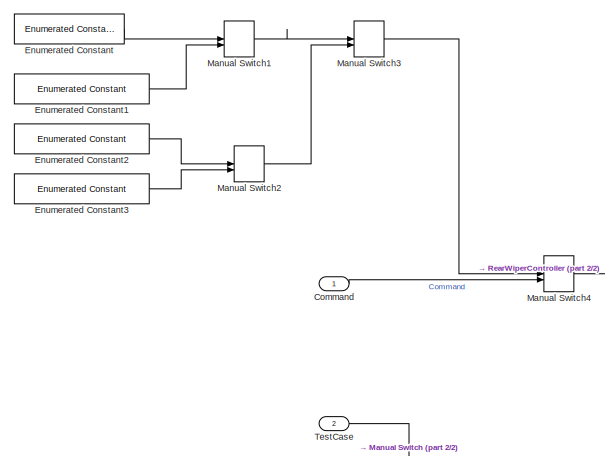
[diagram: root canvas - part 1/2, middle left region]
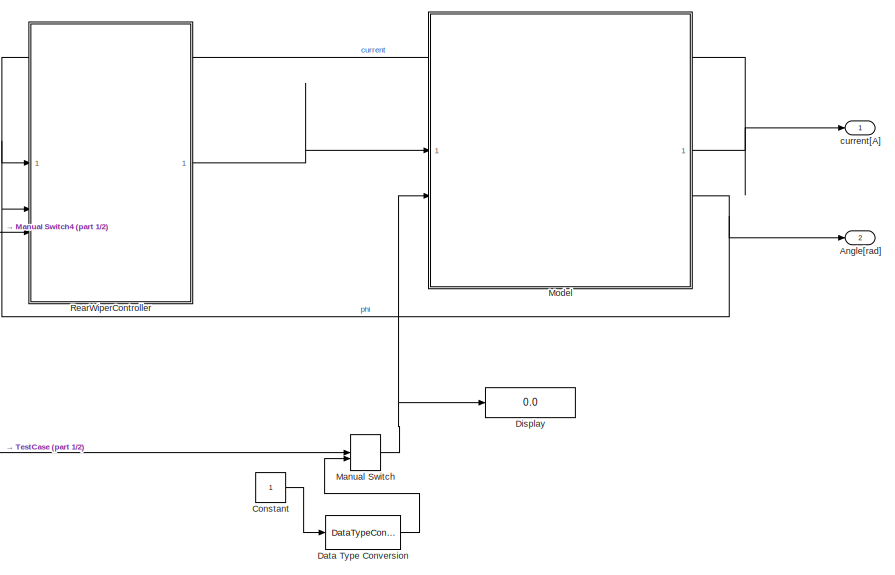
[diagram: root canvas - part 2/2, right side, full height]
MODEL slx_7d35866e43de
KIND model
CONFIG AbsTol = auto
CONFIG EnableMultiTasking = off
CONFIG FixedStep = 5e-5
CONFIG MaxStep = auto
CONFIG MinStep = auto
CONFIG PreLoadFcn = Simulink.defineIntEnumType('windowCommand', {'Off','Speed1','Speed2','Speed3'},[0,1,2,3])
CONFIG RelTol = 1e-3
CONFIG SampleTimeConstraint = Unconstrained
CONFIG SolverName = FixedStepDiscrete
CONFIG StartTime = 0.0
CONFIG StopTime = 15
BLOCK [Outport] Angle[rad]
  Port = 2
BLOCK [Inport] Command
  OutDataTypeStr = Enum: windowCommand
BLOCK [Constant] Constant
BLOCK [DataTypeConversion] Data Type Conversion
  OutDataTypeStr = int8
  RndMeth = Floor
  SaturateOnIntegerOverflow = off
BLOCK [Display] Display
  Decimation = 1
BLOCK [Reference] Enumerated Constant  REF=simulink/Sources/Enumerated
Constant
  SourceBlock = simulink/Sources/Enumerated\nConstant
  SourceType = Enumerated Constant
BLOCK [Reference] Enumerated Constant1  REF=simulink/Sources/Enumerated
Constant
  SourceBlock = simulink/Sources/Enumerated\nConstant
  SourceType = Enumerated Constant
BLOCK [Reference] Enumerated Constant2  REF=simulink/Sources/Enumerated
Constant
  SourceBlock = simulink/Sources/Enumerated\nConstant
  SourceType = Enumerated Constant
BLOCK [Reference] Enumerated Constant3  REF=simulink/Sources/Enumerated
Constant
  SourceBlock = simulink/Sources/Enumerated\nConstant
  SourceType = Enumerated Constant
BLOCK [ManualSwitch] Manual Switch
  CurrentSetting = 0
BLOCK [ManualSwitch] Manual Switch1
BLOCK [ManualSwitch] Manual Switch2
  CurrentSetting = 0
BLOCK [ManualSwitch] Manual Switch3
  CurrentSetting = 0
BLOCK [ManualSwitch] Manual Switch4
BLOCK [ModelReference] Model
  CopyOfModelProtected = on
  ModelNameDialog = RearWiperMotor.slxp
  ModelReferenceVersion = 19.15
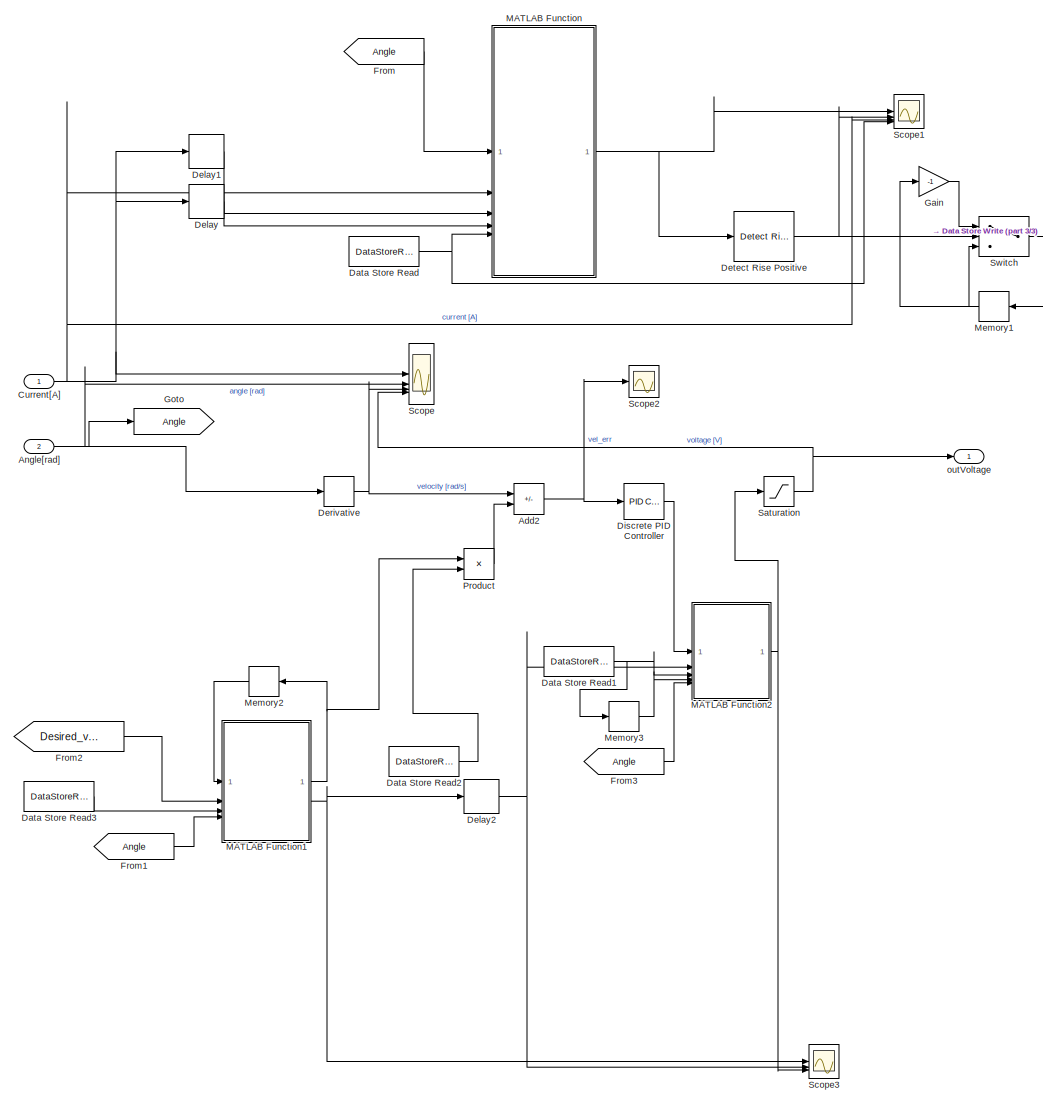
[diagram: RearWiperController - part 1/3, center side, full height]
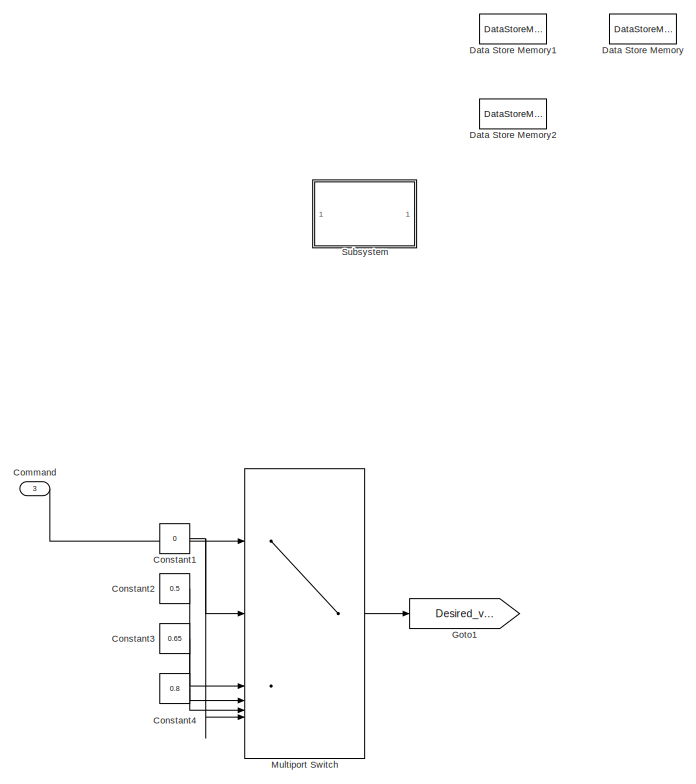
[diagram: RearWiperController - part 2/3, middle left region]
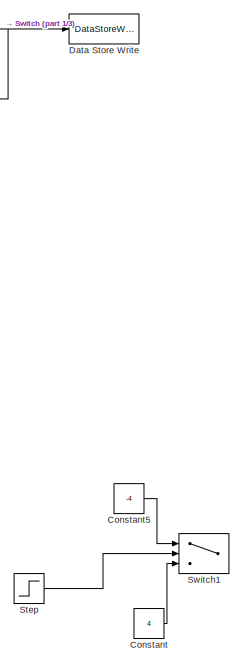
[diagram: RearWiperController - part 3/3, middle right region]
BLOCK [SubSystem] RearWiperController
BLOCK [Sum] RearWiperController/Add2
  IconShape = rectangular
  Inputs = -+
BLOCK [Inport] RearWiperController/Angle[rad]
  Port = 2
BLOCK [Inport] RearWiperController/Command
  OutDataTypeStr = Enum: windowCommand
  Port = 3
BLOCK [Constant] RearWiperController/Constant
  Commented = on
  Value = 4
BLOCK [Constant] RearWiperController/Constant1
  Value = 0
BLOCK [Constant] RearWiperController/Constant2
  Value = 0.5
BLOCK [Constant] RearWiperController/Constant3
  Value = 0.65
BLOCK [Constant] RearWiperController/Constant4
  Value = 0.8
BLOCK [Constant] RearWiperController/Constant5
  Commented = on
  Value = -4
BLOCK [Inport] RearWiperController/Current[A]
BLOCK [DataStoreMemory] RearWiperController/Data Store Memory
  DataStoreName = Direction
  InitialValue = 1
  ShowAdditionalParam = off
  WriteAfterWriteMsg = warning
BLOCK [DataStoreMemory] RearWiperController/Data Store Memory1
  DataStoreName = PID_control
  InitialValue = 1
  ShowAdditionalParam = off
  WriteAfterWriteMsg = warning
BLOCK [DataStoreMemory] RearWiperController/Data Store Memory2
  DataStoreName = rest_control
  InitialValue = 4
  ShowAdditionalParam = off
  WriteAfterWriteMsg = warning
BLOCK [DataStoreRead] RearWiperController/Data Store Read
  DataStoreName = Direction
  IndexOptions = Index vector (dialog)
  Indices = 1
  OutputSizes = 1
BLOCK [DataStoreRead] RearWiperController/Data Store Read1
  DataStoreName = Direction
  IndexOptions = Index vector (dialog)
  Indices = 1
  OutputSizes = 1
BLOCK [DataStoreRead] RearWiperController/Data Store Read2
  DataStoreName = Direction
  IndexOptions = Index vector (dialog)
  Indices = 1
  OutputSizes = 1
BLOCK [DataStoreRead] RearWiperController/Data Store Read3
  DataStoreName = Direction
  IndexOptions = Index vector (dialog)
  Indices = 1
  OutputSizes = 1
BLOCK [DataStoreWrite] RearWiperController/Data Store Write
  DataStoreName = Direction
  IndexOptions = Index vector (dialog)
  Indices = 1
  OutputSizes = 1
BLOCK [Delay] RearWiperController/Delay
  DelayLength = 500
  InputPortMap = u0
BLOCK [Delay] RearWiperController/Delay1
  DelayLength = 250
  InputPortMap = u0
BLOCK [Delay] RearWiperController/Delay2
  DelayLength = 10000
  InputPortMap = u0
BLOCK [Derivative] RearWiperController/Derivative
BLOCK [Reference] RearWiperController/Detect Rise Positive  REF=simulink/Logic and Bit
Operations/Detect Rise
Positive
  SourceBlock = simulink/Logic and Bit\nOperations/Detect Rise\nPositive
  SourceType = Detect Rise Positive
BLOCK [Reference] RearWiperController/Discrete PID Controller  REF=slpidlib/PID Controller
  LibrarySourceBlock = simulink/Discrete/Discrete PID Controller
  SourceBlock = slpidlib/PID Controller
  SourceType = PID 1dof
BLOCK [From] RearWiperController/From
  GotoTag = Angle
BLOCK [From] RearWiperController/From1
  GotoTag = Angle
BLOCK [From] RearWiperController/From2
  GotoTag = Desired_velocity
BLOCK [From] RearWiperController/From3
  GotoTag = Angle
BLOCK [Gain] RearWiperController/Gain
  Gain = -1
BLOCK [Goto] RearWiperController/Goto
  GotoTag = Angle
BLOCK [Goto] RearWiperController/Goto1
  GotoTag = Desired_velocity
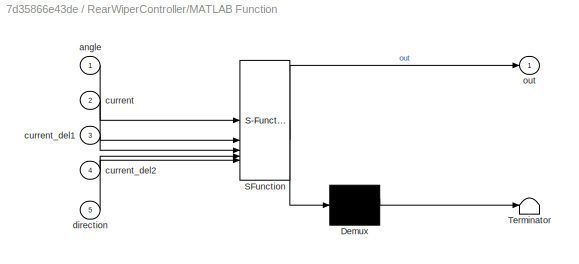
BLOCK [SubSystem] RearWiperController/MATLAB Function
  ErrorFcn = Stateflow.Translate.translate
  PermitHierarchicalResolution = ExplicitOnly
  SFBlockType = MATLAB Function
  TreatAsAtomicUnit = on
BLOCK [Demux] RearWiperController/MATLAB Function/ Demux 
  Outputs = 1
BLOCK [S-Function] RearWiperController/MATLAB Function/ SFunction 
  EnableBusSupport = on
  FunctionName = sf_sfun
  PortCounts = [5 2]
  SFcnIsStateOwnerBlock = off
  SFunctionDeploymentMode = off
  Tag = Stateflow S-Function 2
BLOCK [Terminator] RearWiperController/MATLAB Function/ Terminator 
BLOCK [Inport] RearWiperController/MATLAB Function/angle
BLOCK [Inport] RearWiperController/MATLAB Function/current
  Port = 2
BLOCK [Inport] RearWiperController/MATLAB Function/current_del1
  Port = 3
BLOCK [Inport] RearWiperController/MATLAB Function/current_del2
  Port = 4
BLOCK [Inport] RearWiperController/MATLAB Function/direction
  Port = 5
BLOCK [Outport] RearWiperController/MATLAB Function/out
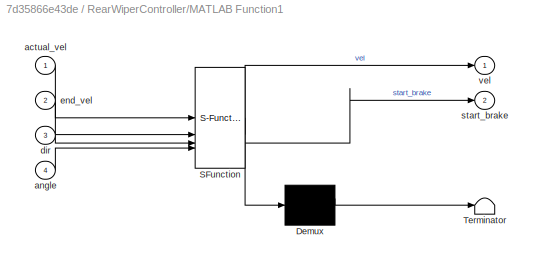
BLOCK [SubSystem] RearWiperController/MATLAB Function1
  ErrorFcn = Stateflow.Translate.translate
  PermitHierarchicalResolution = ExplicitOnly
  SFBlockType = MATLAB Function
  TreatAsAtomicUnit = on
BLOCK [Demux] RearWiperController/MATLAB Function1/ Demux 
  Outputs = 1
BLOCK [S-Function] RearWiperController/MATLAB Function1/ SFunction 
  EnableBusSupport = on
  FunctionName = sf_sfun
  PortCounts = [4 3]
  SFcnIsStateOwnerBlock = off
  SFunctionDeploymentMode = off
  Tag = Stateflow S-Function 1
BLOCK [Terminator] RearWiperController/MATLAB Function1/ Terminator 
BLOCK [Inport] RearWiperController/MATLAB Function1/actual_vel
BLOCK [Inport] RearWiperController/MATLAB Function1/angle
  Port = 4
BLOCK [Inport] RearWiperController/MATLAB Function1/dir
  Port = 3
BLOCK [Inport] RearWiperController/MATLAB Function1/end_vel
  Port = 2
BLOCK [Outport] RearWiperController/MATLAB Function1/start_brake
  Port = 2
BLOCK [Outport] RearWiperController/MATLAB Function1/vel
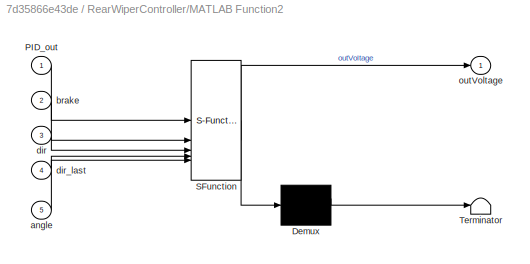
BLOCK [SubSystem] RearWiperController/MATLAB Function2
  ErrorFcn = Stateflow.Translate.translate
  PermitHierarchicalResolution = ExplicitOnly
  SFBlockType = MATLAB Function
  TreatAsAtomicUnit = on
BLOCK [Demux] RearWiperController/MATLAB Function2/ Demux 
  Outputs = 1
BLOCK [S-Function] RearWiperController/MATLAB Function2/ SFunction 
  EnableBusSupport = on
  FunctionName = sf_sfun
  PortCounts = [5 2]
  SFcnIsStateOwnerBlock = off
  SFunctionDeploymentMode = off
  Tag = Stateflow S-Function 3
BLOCK [Terminator] RearWiperController/MATLAB Function2/ Terminator 
BLOCK [Inport] RearWiperController/MATLAB Function2/PID_out
BLOCK [Inport] RearWiperController/MATLAB Function2/angle
  Port = 5
BLOCK [Inport] RearWiperController/MATLAB Function2/brake
  Port = 2
BLOCK [Inport] RearWiperController/MATLAB Function2/dir
  Port = 3
BLOCK [Inport] RearWiperController/MATLAB Function2/dir_last
  Port = 4
BLOCK [Outport] RearWiperController/MATLAB Function2/outVoltage
BLOCK [Memory] RearWiperController/Memory1
  InitialCondition = 1
  NameLocation = top
BLOCK [Memory] RearWiperController/Memory2
  NameLocation = top
BLOCK [Memory] RearWiperController/Memory3
  InitialCondition = 1
BLOCK [MultiPortSwitch] RearWiperController/Multiport Switch
  DataPortForDefault = Additional data port
  DataPortIndices = {windowCommand.Off, windowCommand.Speed1, windowCommand.Speed2, windowCommand.Speed3}
  DataPortOrder = Specify indices
  InputSameDT = off
  SaturateOnIntegerOverflow = off
BLOCK [Product] RearWiperController/Product
BLOCK [Saturate] RearWiperController/Saturation
  LowerLimit = -12
  UpperLimit = 12
BLOCK [Scope] RearWiperController/Scope
  Floating = off
  NumInputPorts = 4
  ScopeSpecificationString = Simulink.scopes.TimeScopeBlockCfg('CurrentConfiguration', extmgr.ConfigurationSet(extmgr.Configuration('Core','General UI',true),extmgr.Configuration('Core','Source UI',true),extmgr.Configuration('Sources','WiredSimulink',true,'DataLoggingVariableName','ScopeData1'),extmgr.Configuration('Visuals','Time Domain',true,'SerializedDisplays',{struct('MinYLimReal','-15.52319','MaxYLimReal','11.79952','YL...<+3442ch>
BLOCK [Scope] RearWiperController/Scope1
  Floating = off
  NumInputPorts = 4
  ScopeSpecificationString = Simulink.scopes.TimeScopeBlockCfg('CurrentConfiguration', extmgr.ConfigurationSet(extmgr.Configuration('Core','General UI',true),extmgr.Configuration('Core','Source UI',true),extmgr.Configuration('Sources','WiredSimulink',true,'DataLoggingVariableName','ScopeData1'),extmgr.Configuration('Visuals','Time Domain',true,'SerializedDisplays',{struct('MinYLimReal','-0.125','MaxYLimReal','1.125','YLabelRe...<+3491ch>
BLOCK [Scope] RearWiperController/Scope2
  Floating = off
  NumInputPorts = 1
  ScopeSpecificationString = Simulink.scopes.TimeScopeBlockCfg('CurrentConfiguration', extmgr.ConfigurationSet(extmgr.Configuration('Core','General UI',true),extmgr.Configuration('Core','Source UI',true),extmgr.Configuration('Sources','WiredSimulink',true,'DataLoggingVariableName','ScopeData2'),extmgr.Configuration('Visuals','Time Domain',true,'SerializedDisplays',{struct('MinYLimReal','-1.17174','MaxYLimReal','0.27297','YLab...<+1420ch>
BLOCK [Scope] RearWiperController/Scope3
  Floating = off
  NumInputPorts = 3
  ScopeSpecificationString = Simulink.scopes.TimeScopeBlockCfg('CurrentConfiguration', extmgr.ConfigurationSet(extmgr.Configuration('Core','General UI',true),extmgr.Configuration('Core','Source UI',true),extmgr.Configuration('Sources','WiredSimulink',true,'DataLoggingVariableName','ScopeData3'),extmgr.Configuration('Visuals','Time Domain',true,'SerializedDisplays',{struct('MinYLimReal','-0.04726','MaxYLimReal','1.04104','YLab...<+2770ch>
BLOCK [Step] RearWiperController/Step
  Commented = on
  SampleTime = 0
  Time = 5
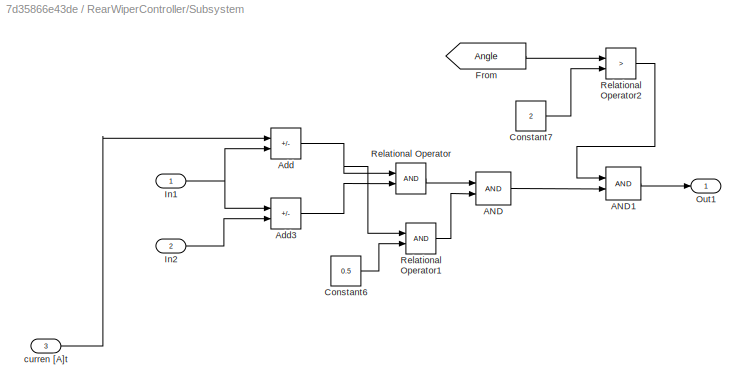
BLOCK [SubSystem] RearWiperController/Subsystem
  Commented = on
BLOCK [Logic] RearWiperController/Subsystem/AND
  AllPortsSameDT = off
  OutDataTypeStr = boolean
BLOCK [Logic] RearWiperController/Subsystem/AND1
  AllPortsSameDT = off
  OutDataTypeStr = boolean
BLOCK [Sum] RearWiperController/Subsystem/Add
  IconShape = rectangular
  Inputs = +-
BLOCK [Sum] RearWiperController/Subsystem/Add3
  IconShape = rectangular
  Inputs = +-
BLOCK [Constant] RearWiperController/Subsystem/Constant6
  Value = 0.5
BLOCK [Constant] RearWiperController/Subsystem/Constant7
  Value = 2
BLOCK [From] RearWiperController/Subsystem/From
  GotoTag = Angle
BLOCK [Inport] RearWiperController/Subsystem/In1
BLOCK [Inport] RearWiperController/Subsystem/In2
  Port = 2
BLOCK [Outport] RearWiperController/Subsystem/Out1
BLOCK [RelationalOperator] RearWiperController/Subsystem/Relational Operator
  InputSameDT = off
  OutDataTypeStr = boolean
  RndMeth = Simplest
BLOCK [RelationalOperator] RearWiperController/Subsystem/Relational Operator1
  InputSameDT = off
  OutDataTypeStr = boolean
  RndMeth = Simplest
BLOCK [RelationalOperator] RearWiperController/Subsystem/Relational Operator2
  InputSameDT = off
  Operator = >
  OutDataTypeStr = boolean
  RndMeth = Simplest
BLOCK [Inport] RearWiperController/Subsystem/curren [A]t
  Port = 3
BLOCK [Switch] RearWiperController/Switch
  Criteria = u2 > Threshold
  InputSameDT = off
  SaturateOnIntegerOverflow = off
BLOCK [Switch] RearWiperController/Switch1
  Commented = on
  Criteria = u2 > Threshold
  InputSameDT = off
  SaturateOnIntegerOverflow = off
BLOCK [Outport] RearWiperController/outVoltage
BLOCK [Inport] TestCase
  OutDataTypeStr = int8
  Port = 2
BLOCK [Outport] current[A]
LINE Command:1 -> Manual Switch4:2
LINE Constant:1 -> Data Type Conversion:1
LINE Data Type Conversion:1 -> Manual Switch:2
LINE Enumerated Constant1:1 -> Manual Switch1:2
LINE Enumerated Constant2:1 -> Manual Switch2:1
LINE Enumerated Constant3:1 -> Manual Switch2:2
LINE Enumerated Constant:1 -> Manual Switch1:1
LINE Manual Switch1:1 -> Manual Switch3:1
LINE Manual Switch2:1 -> Manual Switch3:2
LINE Manual Switch3:1 -> Manual Switch4:1
LINE Manual Switch4:1 -> RearWiperController:3
NET Manual Switch:1 -> Display:1, Model:2
NET Model:1 -> RearWiperController:1, current[A]:1
NET Model:2 -> Angle[rad]:1, RearWiperController:2
NET RearWiperController/Add2:1 -> RearWiperController/Discrete PID Controller:1, RearWiperController/Scope2:1
NET RearWiperController/Angle[rad]:1 -> RearWiperController/Derivative:1, RearWiperController/Goto:1, RearWiperController/Scope:2
LINE RearWiperController/Command:1 -> RearWiperController/Multiport Switch:1
NET RearWiperController/Constant1:1 -> RearWiperController/Multiport Switch:2, RearWiperController/Multiport Switch:6
LINE RearWiperController/Constant2:1 -> RearWiperController/Multiport Switch:3
LINE RearWiperController/Constant3:1 -> RearWiperController/Multiport Switch:4
LINE RearWiperController/Constant4:1 -> RearWiperController/Multiport Switch:5
LINE RearWiperController/Constant5:1 -> RearWiperController/Switch1:1
LINE RearWiperController/Constant:1 -> RearWiperController/Switch1:3
NET RearWiperController/Current[A]:1 -> RearWiperController/Delay1:1, RearWiperController/Delay:1, RearWiperController/MATLAB Function:2, RearWiperController/Scope1:3, RearWiperController/Scope:1
NET RearWiperController/Data Store Read1:1 -> RearWiperController/MATLAB Function2:3, RearWiperController/Memory3:1
LINE RearWiperController/Data Store Read2:1 -> RearWiperController/Product:2
LINE RearWiperController/Data Store Read3:1 -> RearWiperController/MATLAB Function1:3
NET RearWiperController/Data Store Read:1 -> RearWiperController/MATLAB Function:5, RearWiperController/Scope1:4
LINE RearWiperController/Delay1:1 -> RearWiperController/MATLAB Function:3
NET RearWiperController/Delay2:1 -> RearWiperController/MATLAB Function2:2, RearWiperController/Scope3:2
LINE RearWiperController/Delay:1 -> RearWiperController/MATLAB Function:4
NET RearWiperController/Derivative:1 -> RearWiperController/Add2:1, RearWiperController/Scope:3
NET RearWiperController/Detect Rise Positive:1 -> RearWiperController/Scope1:2, RearWiperController/Switch:2
LINE RearWiperController/Discrete PID Controller:1 -> RearWiperController/MATLAB Function2:1
LINE RearWiperController/From1:1 -> RearWiperController/MATLAB Function1:4
LINE RearWiperController/From2:1 -> RearWiperController/MATLAB Function1:2
LINE RearWiperController/From3:1 -> RearWiperController/MATLAB Function2:5
LINE RearWiperController/From:1 -> RearWiperController/MATLAB Function:1
LINE RearWiperController/Gain:1 -> RearWiperController/Switch:1
NET RearWiperController/MATLAB Function1:1 -> RearWiperController/Memory2:1, RearWiperController/Product:1
NET RearWiperController/MATLAB Function1:2 -> RearWiperController/Delay2:1, RearWiperController/Scope3:1
NET RearWiperController/MATLAB Function2:1 -> RearWiperController/Saturation:1, RearWiperController/Scope3:3
NET RearWiperController/MATLAB Function:1 -> RearWiperController/Detect Rise Positive:1, RearWiperController/Scope1:1
NET RearWiperController/Memory1:1 -> RearWiperController/Gain:1, RearWiperController/Switch:3
LINE RearWiperController/Memory2:1 -> RearWiperController/MATLAB Function1:1
LINE RearWiperController/Memory3:1 -> RearWiperController/MATLAB Function2:4
LINE RearWiperController/Multiport Switch:1 -> RearWiperController/Goto1:1
LINE RearWiperController/Product:1 -> RearWiperController/Add2:2
NET RearWiperController/Saturation:1 -> RearWiperController/Scope:4, RearWiperController/outVoltage:1
LINE RearWiperController/Step:1 -> RearWiperController/Switch1:2
LINE RearWiperController/Subsystem/AND1:1 -> RearWiperController/Subsystem/Out1:1
LINE RearWiperController/Subsystem/AND:1 -> RearWiperController/Subsystem/AND1:2
LINE RearWiperController/Subsystem/Add3:1 -> RearWiperController/Subsystem/Relational Operator:2
NET RearWiperController/Subsystem/Add:1 -> RearWiperController/Subsystem/Relational Operator1:1, RearWiperController/Subsystem/Relational Operator:1
LINE RearWiperController/Subsystem/Constant6:1 -> RearWiperController/Subsystem/Relational Operator1:2
LINE RearWiperController/Subsystem/Constant7:1 -> RearWiperController/Subsystem/Relational Operator2:2
LINE RearWiperController/Subsystem/From:1 -> RearWiperController/Subsystem/Relational Operator2:1
NET RearWiperController/Subsystem/In1:1 -> RearWiperController/Subsystem/Add3:1, RearWiperController/Subsystem/Add:2
LINE RearWiperController/Subsystem/In2:1 -> RearWiperController/Subsystem/Add3:2
LINE RearWiperController/Subsystem/Relational Operator1:1 -> RearWiperController/Subsystem/AND:2
LINE RearWiperController/Subsystem/Relational Operator2:1 -> RearWiperController/Subsystem/AND1:1
LINE RearWiperController/Subsystem/Relational Operator:1 -> RearWiperController/Subsystem/AND:1
LINE RearWiperController/Subsystem/curren [A]t:1 -> RearWiperController/Subsystem/Add:1
NET RearWiperController/Switch:1 -> RearWiperController/Data Store Write:1, RearWiperController/Memory1:1
LINE RearWiperController:1 -> Model:1
LINE TestCase:1 -> Manual Switch:1
note: NET lines group one-source signal fan-out (src -> all destinations, sorted); 1:1 wires keep LINE
CHART RearWiperController/MATLAB Function1 states=1 transitions=1
  STATE_LABEL 'eML_blk_kernel()'
  STATE_LABEL 'SCRIPT:\nfunction [vel, start_brake] = desired_velocity(actual_vel, end_vel, dir, angle)\n\n\nangle_tresh_pos = 2;    % [rad]\nangle_tresh_neg = 0.7;    % [rad]\nstep = 5e-5;            % [rad/s]\n\nstep2 = 3e-5;           % [rad/s]\n\nrest_vel = 0.2;         % [rad/s]\n\nif (dir == 1 && angle > angle_tresh_pos) || (dir == -1 && angle < angle_tresh_neg)\n    \n    if actual_vel > rest_vel\n        vel = actual_v...<+212ch>'
CHART RearWiperController/MATLAB Function states=1 transitions=1
  STATE_LABEL 'eML_blk_kernel()'
  STATE_LABEL 'SCRIPT:\nfunction out = change_direction(angle, current, current_del1, current_del2, direction)\n\n\ncurr_diff_tresh = 0.5; % [A]\nangle_tresh_pos = 2; % [rad]\nangle_tresh_neg = 1; % [rad]\n\n% direction = -1  -> obrót w lewo (ujemne napięcie)\n% direction = 1  -> obrót w prawo (dodatnie napięcie)\n\nif(direction == -1)\n    out = ((current_del1 - current) >= (current_del2 - current_del1) && (current_del1 - ...<+249ch>'
CHART RearWiperController/MATLAB Function2 states=1 transitions=1
  STATE_LABEL 'eML_blk_kernel()'
  STATE_LABEL 'SCRIPT:\nfunction outVoltage =  fcn(PID_out, brake, dir, dir_last, angle)\n\n\nrest_voltage = 4;       %[V]\n\nangle_tresh_pos = 2;    % [rad]\nangle_tresh_neg = 1;    % [rad]\n\n\nstep = 5e-5;            % [rad/s]\n\nstep2 = 2e-5;            % [rad/s]\n\n\n\nif brake\n\n    outVoltage = rest_voltage;\n\nelse\n\n    outVoltage = PID_out;\n\nend\n\n%outVoltage = PID_out;\n\n\n'
CHART  states=0 transitions=0
CHART  states=0 transitions=0
CHART  states=0 transitions=0
